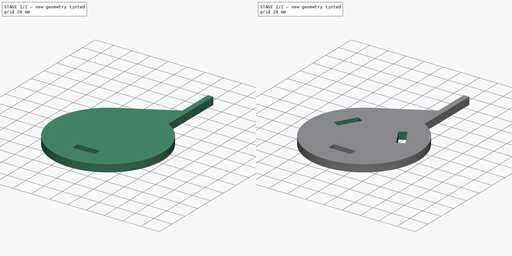
[diagram: build sequence overview — one tinted view per stage of 2, left to right]
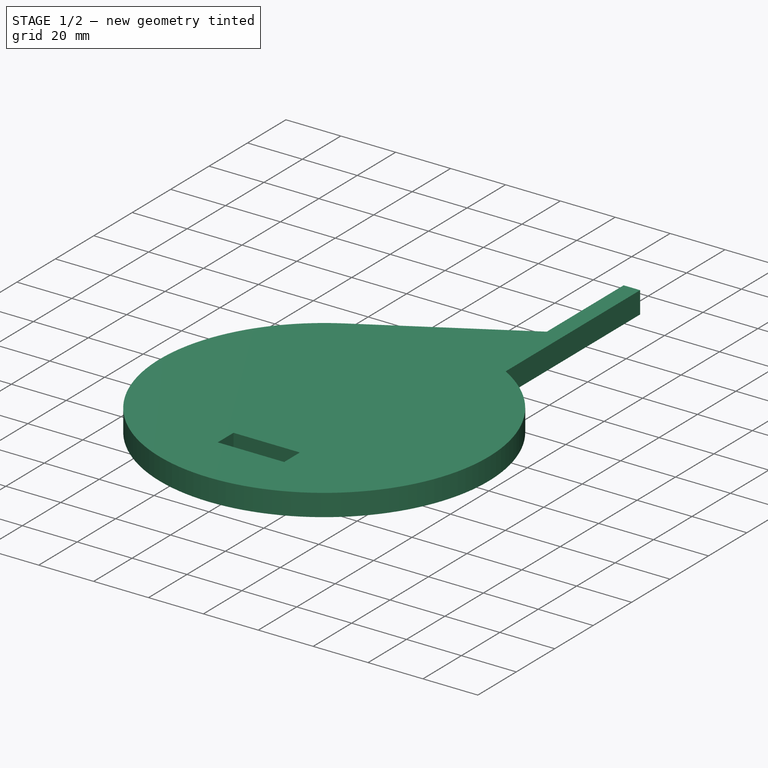
[diagram: stage 1 of 2 — iso view after this stage's code; geometry added in this stage tinted green]
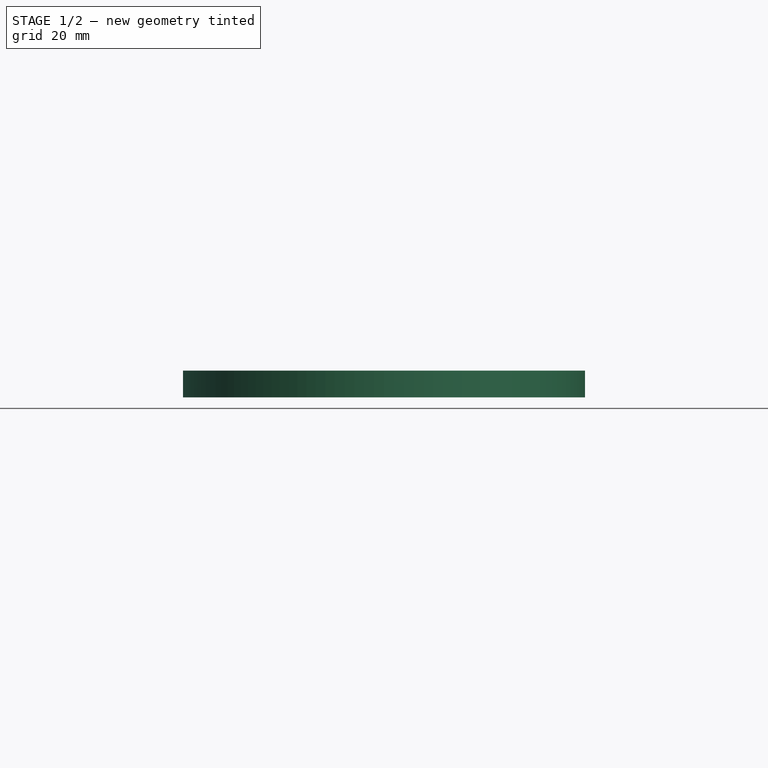
[diagram: stage 1 of 2 — front view after this stage's code; geometry added in this stage tinted green]
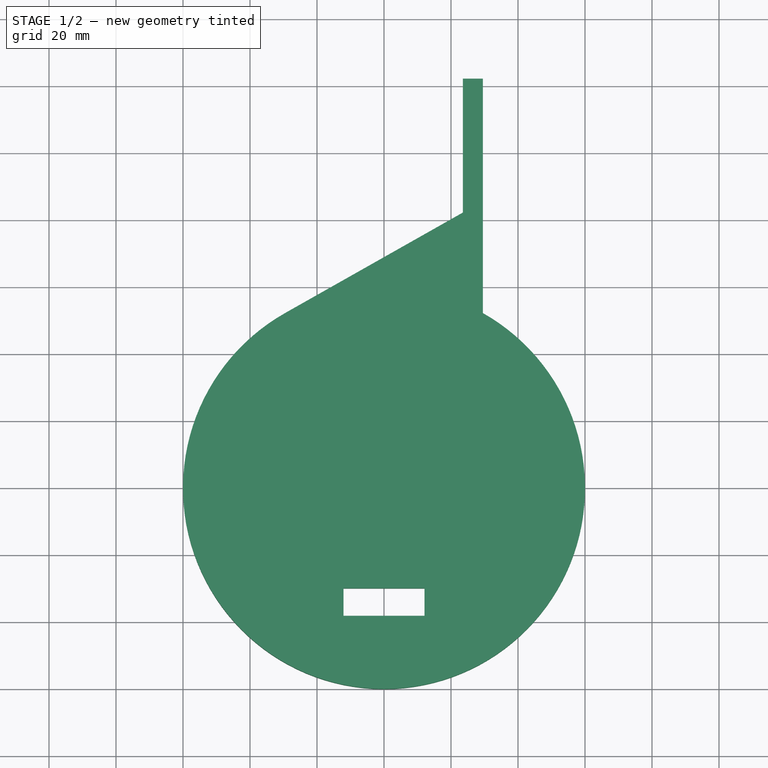
[diagram: stage 1 of 2 — top view after this stage's code; geometry added in this stage tinted green]
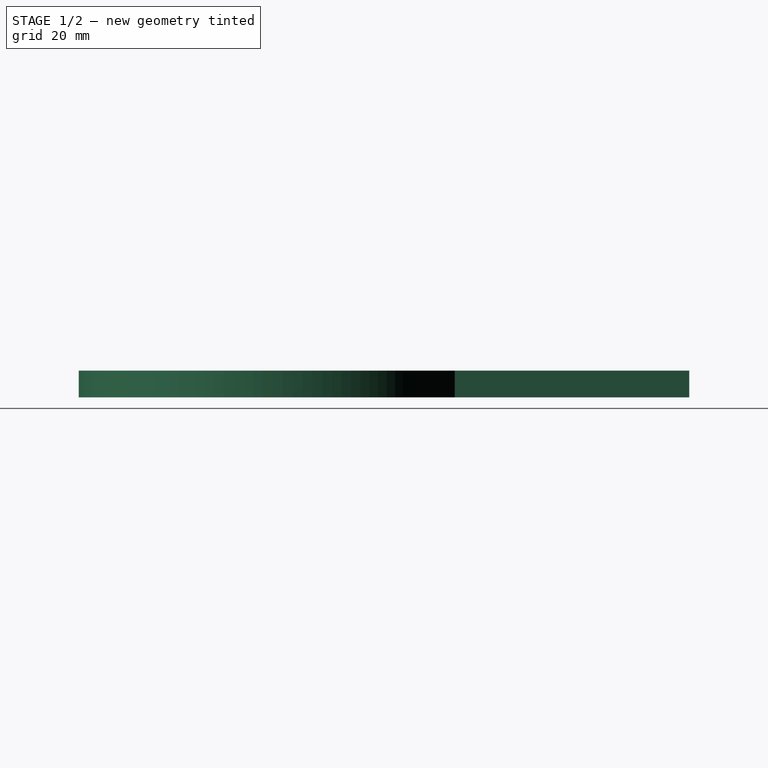
[diagram: stage 1 of 2 — right view after this stage's code; geometry added in this stage tinted green]
FCSTD DOCUMENT  (FreeCAD 0.14R3702 (Git))
Label: soporte_laser_tube_top
License: CC-BY 3.0
LicenseURL: http://creativecommons.org/licenses/by/3.0/
objects: Sketcher::SketchObject×3, PartDesign::Pad×1, PartDesign::Pocket×1, PartDesign::PolarPattern×1, Part::Part2DObjectPython×1
note: 9 computed .brp shape members not serialized (recipe doc carries the construction recipe); baked Part::Feature solids carry a one-line shape summary decoded from their .brp

FEATURE [Sketcher::SketchObject] Sketch
  sketch-geometry (11):
    g0: ArcOfCircle CenterX=0 CenterY=0 CenterZ=0 NormalX=0 NormalY=0 NormalZ=1 Radius=60 StartAngle=2.08538 EndAngle=7.3394
    g1: LineSegment StartX=23.5303 StartY=122.23 StartZ=0 EndX=29.5303 EndY=122.23 EndZ=0
    g2: LineSegment [constr] StartX=-29.5303 StartY=52.2299 StartZ=0 EndX=29.5303 EndY=52.2299 EndZ=0
    g3: LineSegment StartX=29.5303 StartY=122.23 StartZ=0 EndX=29.5303 EndY=52.2299 EndZ=0
    g4: LineSegment StartX=23.5303 StartY=122.23 StartZ=0 EndX=23.5303 EndY=82.2299 EndZ=0
    g5: LineSegment StartX=23.5303 StartY=82.2299 StartZ=0 EndX=-29.5303 EndY=52.2299 EndZ=0
    g6: LineSegment [constr] StartX=-12 StartY=-30 StartZ=0 EndX=12 EndY=-30 EndZ=0
    g7: LineSegment [constr] StartX=12 StartY=-30 StartZ=0 EndX=12 EndY=-38 EndZ=0
    g8: LineSegment [constr] StartX=12 StartY=-38 StartZ=0 EndX=-12 EndY=-38 EndZ=0
    g9: LineSegment [constr] StartX=-12 StartY=-38 StartZ=0 EndX=-12 EndY=-30 EndZ=0
    g10: GeomPoint [constr] X=0 Y=0 Z=0
  constraints (31):
    c: Coincident(g0,g-1)
    c: Radius(g0) = 60
    c: Horizontal(g1)
    c: Distance(g1) = 6
    c: Horizontal(g2)
    c: Coincident(g3,g1)
    c: Vertical(g3)
    c: PointOnObject(g3,g0)
    c: Coincident(g4,g1)
    c: Vertical(g4)
    c: Distance(g4) = 40
    c: Distance(g3) = 70
    c: Coincident(g0,g2)
    c: Coincident(g0,g2)
    c: Coincident(g5,g4)
    c: Coincident(g5,g0)
    c: Tangent(g5,g0)
    c: Coincident(g3,g0)
    c: Coincident(g6,g7)
    c: Coincident(g7,g8)
    c: Coincident(g8,g9)
    c: Coincident(g9,g6)
    c: Horizontal(g6)
    c: Horizontal(g8)
    c: Vertical(g7)
    c: Vertical(g9)
    c: Distance(g9) = 8
    c: Distance(g6) = 24
    c: DistanceX(g-1,g8) = -12
    c: DistanceY(g-1,g6) = -30
    c: Coincident(g10,g-1)
FEATURE [PartDesign::Pad] Pad  label="base"
  Length = 8
  Length2 = 100
  Sketch = -> Sketch
  Type = 0
FEATURE [Sketcher::SketchObject] Sketch001
  Placement = pos=(0,0,8) rot=(0,0,1;0rad)
  Support = -> Pad [Face7]
  sketch-geometry (5):
    g0: LineSegment StartX=-12.1 StartY=-29.926 StartZ=0 EndX=12.1 EndY=-29.926 EndZ=0
    g1: LineSegment StartX=12.1 StartY=-29.926 StartZ=0 EndX=12.1 EndY=-38.126 EndZ=0
    g2: LineSegment StartX=12.1 StartY=-38.126 StartZ=0 EndX=-12.1 EndY=-38.126 EndZ=0
    g3: LineSegment StartX=-12.1 StartY=-38.126 StartZ=0 EndX=-12.1 EndY=-29.926 EndZ=0
    g4: Circle [constr] CenterX=0 CenterY=0 CenterZ=0 NormalX=0 NormalY=0 NormalZ=1 Radius=40
  constraints (14):
    c: Coincident(g0,g1)
    c: Coincident(g1,g2)
    c: Coincident(g2,g3)
    c: Coincident(g3,g0)
    c: Horizontal(g0)
    c: Horizontal(g2)
    c: Vertical(g1)
    c: Vertical(g3)
    c: Distance(g3) = 8.2
    c: Distance(g0) = 24.2
    c: Coincident(g4,g-1)
    c: Radius(g4) = 40
    c: PointOnObject(g2,g4)
    c: PointOnObject(g1,g4)
FEATURE [PartDesign::Pocket] Pocket
  Length = 8
  Sketch = -> Sketch001
  Type = 0
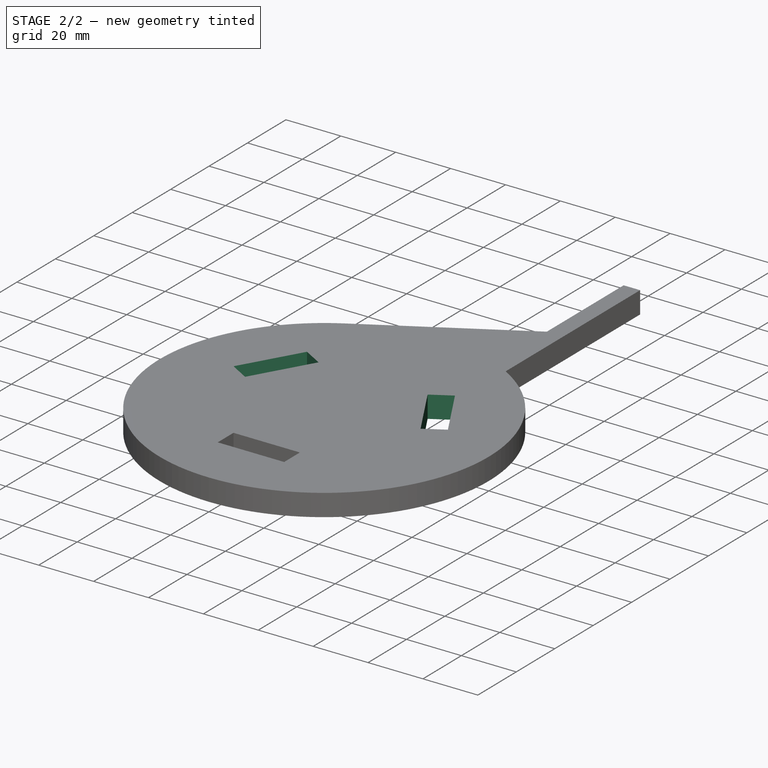
[diagram: stage 2 of 2 — iso view after this stage's code; geometry added in this stage tinted green]
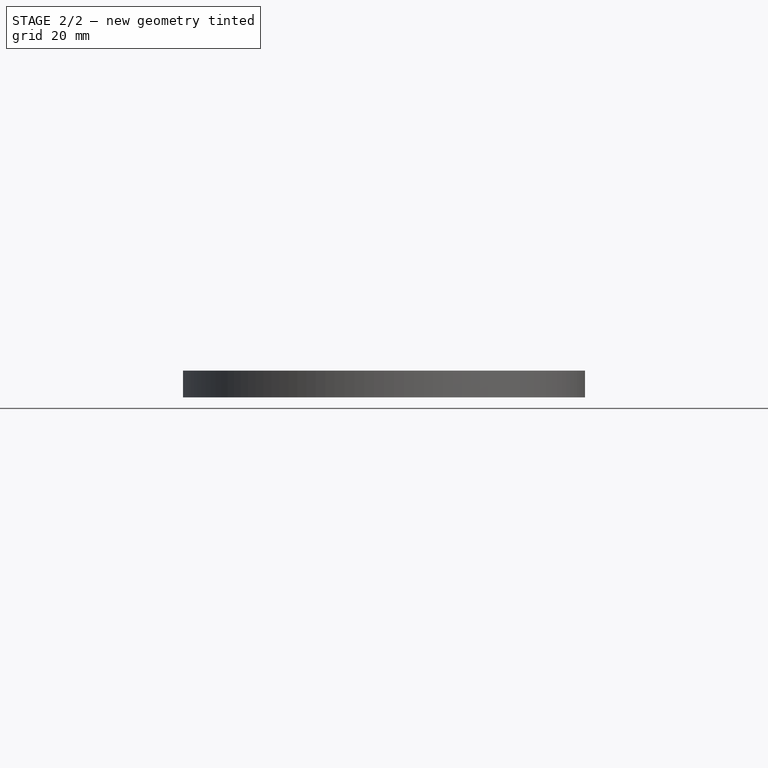
[diagram: stage 2 of 2 — front view after this stage's code; geometry added in this stage tinted green]
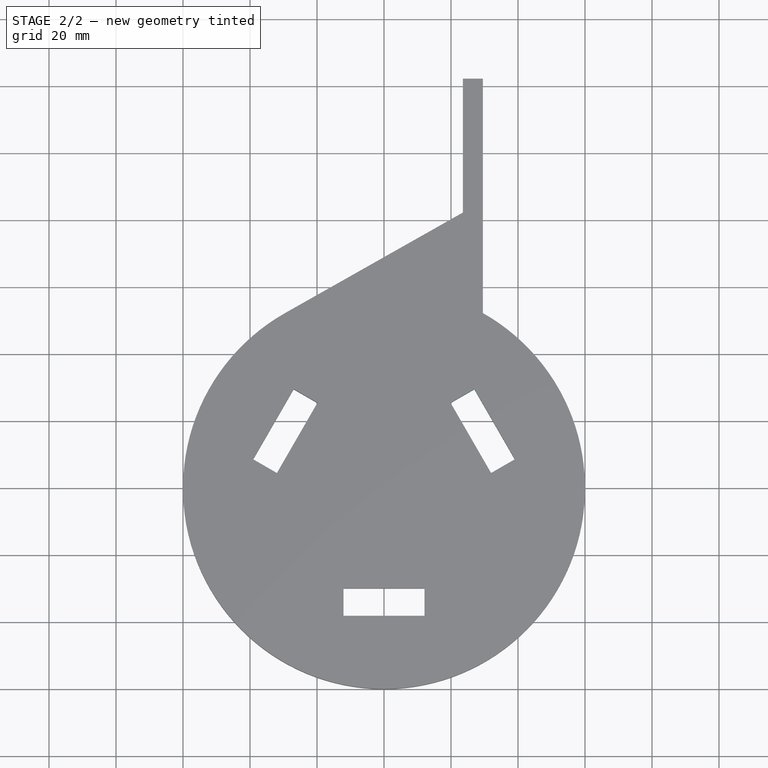
[diagram: stage 2 of 2 — top view after this stage's code; geometry added in this stage tinted green]
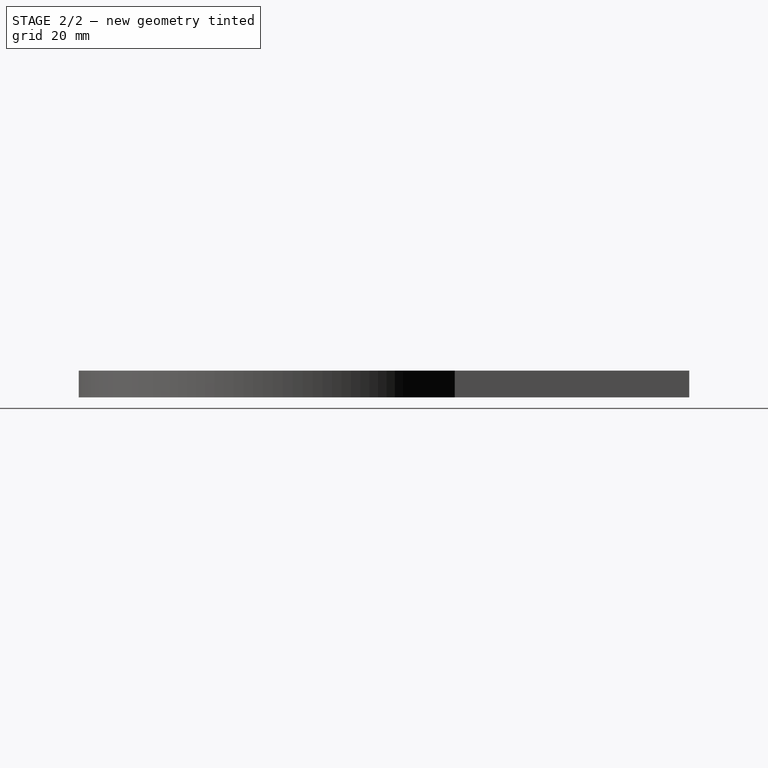
[diagram: stage 2 of 2 — right view after this stage's code; geometry added in this stage tinted green]
FEATURE [PartDesign::PolarPattern] PolarPattern
  Angle = 360
  Axis = -> Sketch001 [N_Axis]
  Occurrences = 3
  Originals = -> [Pocket]
FEATURE [Part::Part2DObjectPython] Shape2DView  # Draft 2D object (typed FeaturePython)
  Base = -> PolarPattern
  HiddenLines = false
  Projection = (0,0,1)
  ProjectionMode = 0
  SegmentLength = 0.05
  Tessellation = false
FEATURE [Sketcher::SketchObject] Sketch002
  ExternalGeometry = -> [PolarPattern]
  Placement = pos=(0,0,8) rot=(0,0,1;0rad)
  Support = -> PolarPattern [Face5]
  sketch-geometry (6):
    g0: LineSegment StartX=-39.0673 StartY=8.58252 StartZ=0 EndX=-12.1 EndY=-38.1275 EndZ=0
    g1: LineSegment StartX=-12.1 StartY=-29.926 StartZ=0 EndX=-0.1 EndY=-29.926 EndZ=0
    g2: LineSegment StartX=-31.9667 StartY=4.48408 StartZ=0 EndX=-25.9667 EndY=14.8764 EndZ=0
    g3: LineSegment StartX=-25.9667 StartY=14.8764 StartZ=0 EndX=-0.1 EndY=-29.926 EndZ=0
    g4: LineSegment StartX=-31.9667 StartY=4.48408 StartZ=0 EndX=-39.0673 EndY=8.58252 EndZ=0
    g5: LineSegment StartX=-12.1 StartY=-38.1275 StartZ=0 EndX=-12.1 EndY=-29.926 EndZ=0
  constraints (13):
    c: Parallel(g1,g-4)
    c: Parallel(g2,g-3)
    c: Distance(g2) = 12
    c: Coincident(g2,g-3)
    c: Distance(g1) = 12
    c: Coincident(g1,g-4)
    c: Coincident(g3,g2)
    c: Coincident(g3,g1)
    c: Coincident(g4,g2)
    c: Coincident(g4,g0)
    c: Coincident(g5,g0)
    c: Coincident(g5,g1)
    c: Vertical(g5)
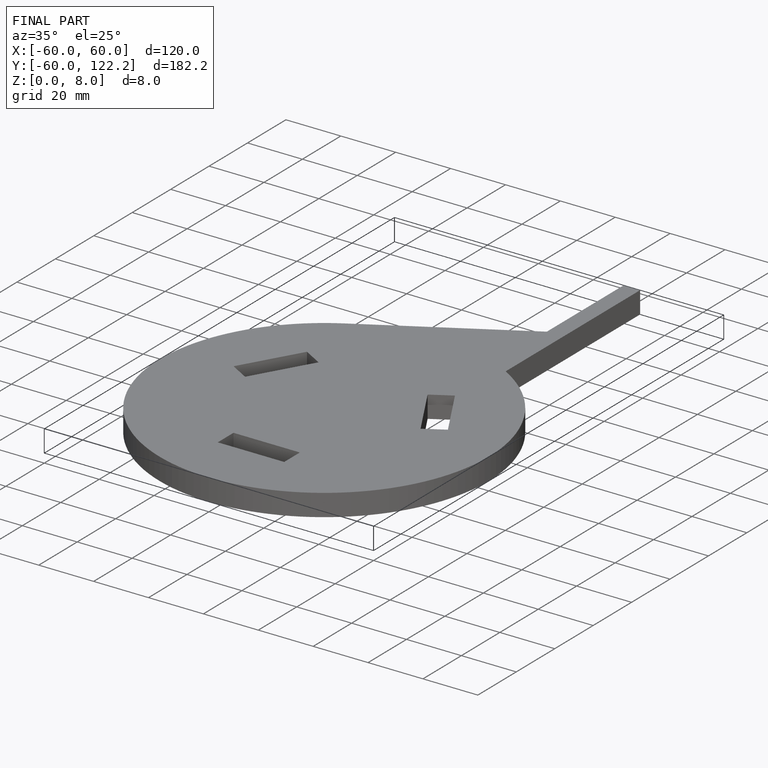
[diagram: finished part — iso view with bounding-box wireframe]
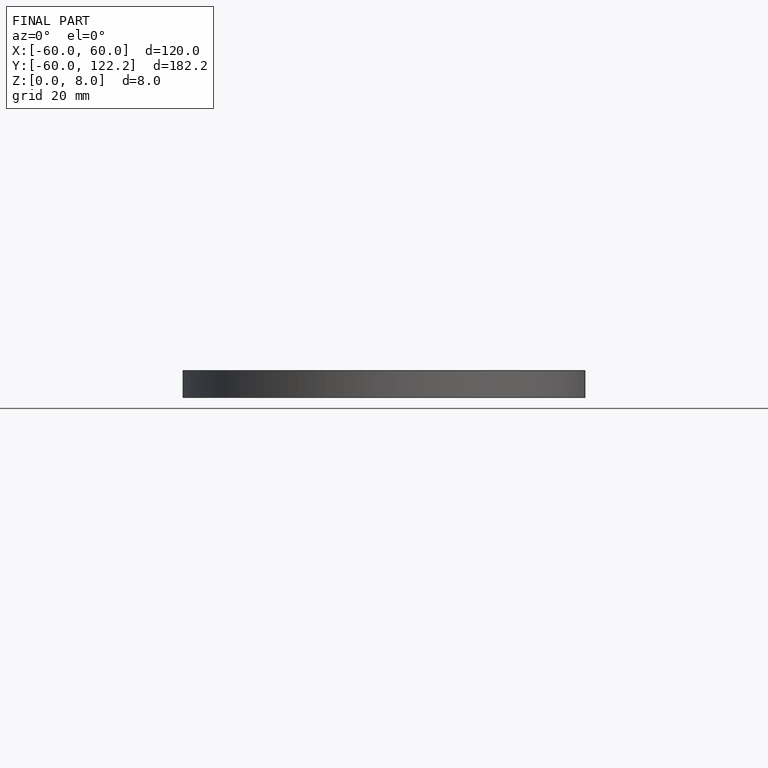
[diagram: finished part — front view with bounding-box wireframe]
